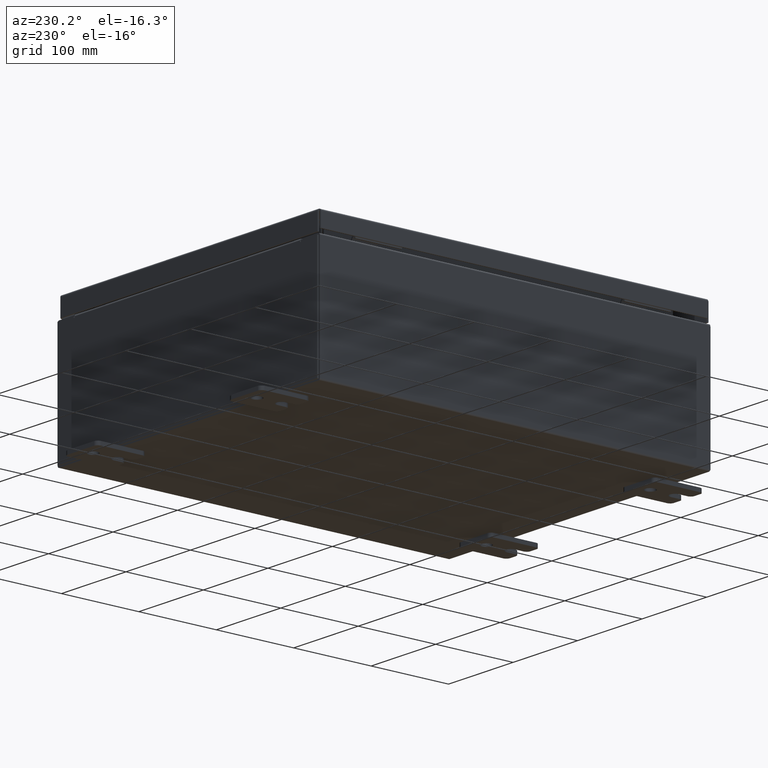
[diagram: clean part render]
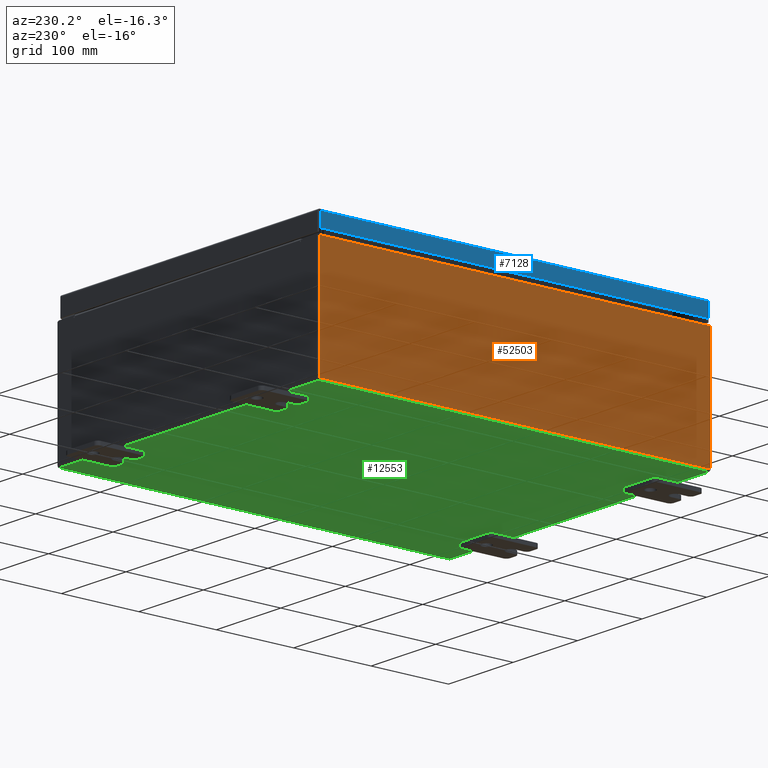
[diagram: same view with three faces highlighted in distinct colors, each labeled with its STEP entity id]
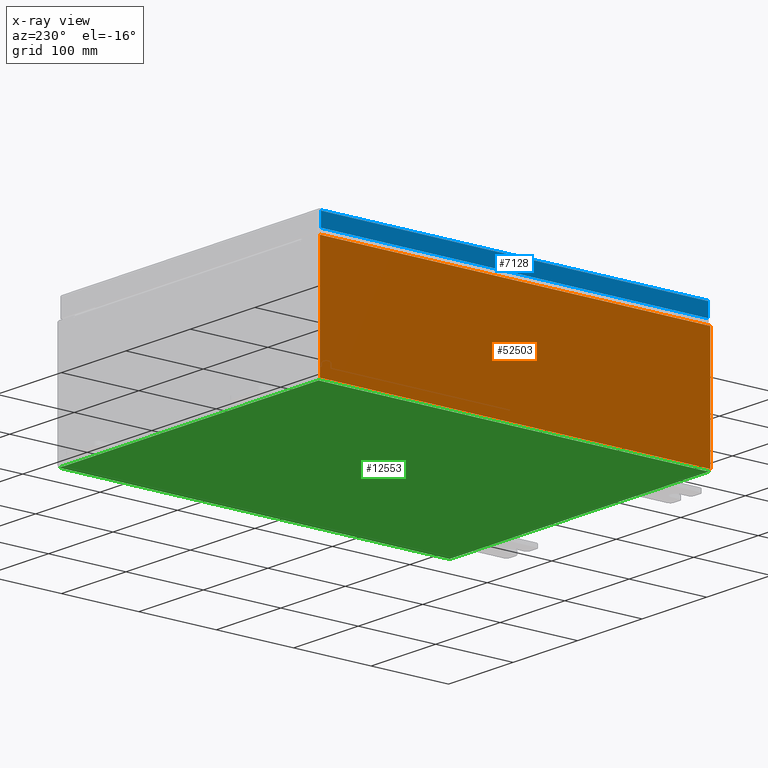
[diagram: x-ray of the same camera — body ghosted, the three highlighted faces saturated]
A machine part, auxiliary view with three faces highlighted in distinct colors.
The next image is the same camera in x-ray (body ghosted, the three faces saturated) — at least one of them is partly hidden behind the body in this view.
Their STEP definitions:

[orange] entity #52503 — the highlighted planar face has unit normal (1, 0, 0).
#805 = EDGE_LOOP ( 'NONE', ( #62883, #42499, #8192, #32660 ) ) ;
#4986 = VERTEX_POINT ( 'NONE', #24526 ) ;
#7159 = VERTEX_POINT ( 'NONE', #38336 ) ;
#8192 = ORIENTED_EDGE ( 'NONE', *, *, #40244, .F. ) ;
#9453 = PLANE ( 'NONE',  #29544 ) ;
#11032 = VECTOR ( 'NONE', #58499, 39.37007874015748100 ) ;
#12487 = DIRECTION ( 'NONE',  ( 3.503965158194252100E-015, 0.0000000000000000000, -1.000000000000000000 ) ) ;
#13048 = LINE ( 'NONE', #35931, #61678 ) ;
#14345 = DIRECTION ( 'NONE',  ( 3.503965158194251300E-015, 0.0000000000000000000, -1.000000000000000000 ) ) ;
#15927 = VECTOR ( 'NONE', #12487, 39.37007874015748100 ) ;
#18326 = CARTESIAN_POINT ( 'NONE',  ( -8.000000000000017800, -9.925299999999996500, 5.837599999999999200 ) ) ;
#24483 = LINE ( 'NONE', #27122, #51886 ) ;
#24526 = CARTESIAN_POINT ( 'NONE',  ( -7.999999999999997300, -9.925300000000000000, 0.01299999999999984700 ) ) ;
#25885 = LINE ( 'NONE', #41724, #15927 ) ;
#27122 = CARTESIAN_POINT ( 'NONE',  ( -7.999999999999997300, -9.925300000000001800, -2.829253492156558900E-014 ) ) ;
#29105 = EDGE_CURVE ( 'NONE', #29381, #39162, #13048, .T. ) ;
#29156 = FACE_OUTER_BOUND ( 'NONE', #805, .T. ) ;
#29381 = VERTEX_POINT ( 'NONE', #18326 ) ;
#29461 = CARTESIAN_POINT ( 'NONE',  ( -7.999999999999997300, 9.925299999999998200, 0.01299999999999984700 ) ) ;
#29544 = AXIS2_PLACEMENT_3D ( 'NONE', #57914, #43599, #14345 ) ;
#32660 = ORIENTED_EDGE ( 'NONE', *, *, #53552, .T. ) ;
#32777 = EDGE_CURVE ( 'NONE', #39162, #7159, #25885, .T. ) ;
#35931 = CARTESIAN_POINT ( 'NONE',  ( -8.000000000000017800, -9.925299999999998200, 5.837599999999999200 ) ) ;
#37043 = LINE ( 'NONE', #29461, #11032 ) ;
#38336 = CARTESIAN_POINT ( 'NONE',  ( -7.999999999999997300, 9.925299999999998200, 0.01299999999999984500 ) ) ;
#39162 = VERTEX_POINT ( 'NONE', #47304 ) ;
#40244 = EDGE_CURVE ( 'NONE', #4986, #7159, #37043, .T. ) ;
#41724 = CARTESIAN_POINT ( 'NONE',  ( -7.999999999999997300, 9.925299999999998200, -2.829253492156558900E-014 ) ) ;
#42499 = ORIENTED_EDGE ( 'NONE', *, *, #32777, .T. ) ;
#43599 = DIRECTION ( 'NONE',  ( 1.000000000000000000, 0.0000000000000000000, 3.503965158194251300E-015 ) ) ;
#47304 = CARTESIAN_POINT ( 'NONE',  ( -8.000000000000017800, 9.925299999999998200, 5.837599999999999200 ) ) ;
#51160 = DIRECTION ( 'NONE',  ( -3.503965158194252100E-015, 0.0000000000000000000, 1.000000000000000000 ) ) ;
#51886 = VECTOR ( 'NONE', #51160, 39.37007874015748100 ) ;
#52503 = ADVANCED_FACE ( 'NONE', ( #29156 ), #9453, .F. ) ;
#53552 = EDGE_CURVE ( 'NONE', #4986, #29381, #24483, .T. ) ;
#55374 = DIRECTION ( 'NONE',  ( 0.0000000000000000000, 1.000000000000000000, 0.0000000000000000000 ) ) ;
#57914 = CARTESIAN_POINT ( 'NONE',  ( -7.999999999999997300, 0.0000000000000000000, -2.829253492156558900E-014 ) ) ;
#58499 = DIRECTION ( 'NONE',  ( -0.0000000000000000000, 1.000000000000000000, -0.0000000000000000000 ) ) ;
#61678 = VECTOR ( 'NONE', #55374, 39.37007874015748100 ) ;
#62883 = ORIENTED_EDGE ( 'NONE', *, *, #29105, .T. ) ;

[blue] entity #7128 — the highlighted planar face has unit normal (1, 0, -0).
#2509 = VECTOR ( 'NONE', #21958, 39.37007874015748100 ) ;
#3180 = LINE ( 'NONE', #33013, #40673 ) ;
#4803 = VECTOR ( 'NONE', #27373, 39.37007874015748100 ) ;
#5241 = LINE ( 'NONE', #61507, #16671 ) ;
#7128 = ADVANCED_FACE ( 'NONE', ( #54364 ), #42523, .F. ) ;
#8770 = VERTEX_POINT ( 'NONE', #12482 ) ;
#12482 = CARTESIAN_POINT ( 'NONE',  ( -7.937500000000000000, -9.848657864376273000, -0.08770000000000007000 ) ) ;
#12989 = DIRECTION ( 'NONE',  ( 1.000000000000000000, 3.753401345910882400E-031, -3.034122441942816500E-015 ) ) ;
#15509 = LINE ( 'NONE', #60789, #2509 ) ;
#16671 = VECTOR ( 'NONE', #47006, 39.37007874015748100 ) ;
#19883 = ORIENTED_EDGE ( 'NONE', *, *, #55910, .F. ) ;
#21345 = VERTEX_POINT ( 'NONE', #21404 ) ;
#21404 = CARTESIAN_POINT ( 'NONE',  ( -7.937500000000002700, -9.848657864376265900, -0.7949999999999996000 ) ) ;
#21958 = DIRECTION ( 'NONE',  ( -3.034122441942816500E-015, 6.982962677686267500E-015, -1.000000000000000000 ) ) ;
#25727 = EDGE_CURVE ( 'NONE', #8770, #21345, #15509, .T. ) ;
#27373 = DIRECTION ( 'NONE',  ( 4.379057701015054300E-047, 1.000000000000000000, 1.237063242414006300E-016 ) ) ;
#30289 = CARTESIAN_POINT ( 'NONE',  ( -7.937500000000002700, 9.848657864376271200, -0.7949999999999972600 ) ) ;
#31025 = CARTESIAN_POINT ( 'NONE',  ( -7.937500000000000000, -2.979262318316762700E-030, 2.434416053893268900E-014 ) ) ;
#33013 = CARTESIAN_POINT ( 'NONE',  ( -7.937500000000000000, 9.848657864376265900, 9.311697083117350000E-014 ) ) ;
#34638 = VERTEX_POINT ( 'NONE', #37352 ) ;
#37352 = CARTESIAN_POINT ( 'NONE',  ( -7.937500000000000000, 9.848657864376269400, -0.08770000000000004200 ) ) ;
#37911 = DIRECTION ( 'NONE',  ( -3.034122441942816500E-015, 6.982962677686267500E-015, -1.000000000000000000 ) ) ;
#40673 = VECTOR ( 'NONE', #37911, 39.37007874015748100 ) ;
#40999 = ORIENTED_EDGE ( 'NONE', *, *, #25727, .F. ) ;
#42259 = LINE ( 'NONE', #56466, #4803 ) ;
#42523 = PLANE ( 'NONE',  #55913 ) ;
#47006 = DIRECTION ( 'NONE',  ( 3.753401345910882400E-031, -1.000000000000000000, -1.106432229392147200E-045 ) ) ;
#47963 = VERTEX_POINT ( 'NONE', #30289 ) ;
#49331 = EDGE_LOOP ( 'NONE', ( #19883, #62252, #49597, #40999 ) ) ;
#49597 = ORIENTED_EDGE ( 'NONE', *, *, #50537, .F. ) ;
#50537 = EDGE_CURVE ( 'NONE', #21345, #47963, #42259, .T. ) ;
#51575 = EDGE_CURVE ( 'NONE', #34638, #47963, #3180, .T. ) ;
#54364 = FACE_OUTER_BOUND ( 'NONE', #49331, .T. ) ;
#55326 = DIRECTION ( 'NONE',  ( -3.034122441942816500E-015, 0.0000000000000000000, -1.000000000000000000 ) ) ;
#55910 = EDGE_CURVE ( 'NONE', #34638, #8770, #5241, .T. ) ;
#55913 = AXIS2_PLACEMENT_3D ( 'NONE', #31025, #12989, #55326 ) ;
#56466 = CARTESIAN_POINT ( 'NONE',  ( -7.937500000000002700, -9.937500000000001800, -0.7949999999999997100 ) ) ;
#60789 = CARTESIAN_POINT ( 'NONE',  ( -7.937500000000000000, -9.848657864376271200, -0.07469999999999976700 ) ) ;
#61507 = CARTESIAN_POINT ( 'NONE',  ( -7.937500000000000000, -9.937500000000001800, -0.08770000000000004200 ) ) ;
#62252 = ORIENTED_EDGE ( 'NONE', *, *, #51575, .T. ) ;

[green] entity #12553 — the highlighted planar face has unit normal (0, 0, -1).
#132 = AXIS2_PLACEMENT_3D ( 'NONE', #15067, #13780, #13698 ) ;
#4273 = LINE ( 'NONE', #32307, #54529 ) ;
#4603 = LINE ( 'NONE', #35881, #17562 ) ;
#9455 = DIRECTION ( 'NONE',  ( -1.000000000000000000, -0.0000000000000000000, -0.0000000000000000000 ) ) ;
#11364 = EDGE_CURVE ( 'NONE', #48459, #23741, #4603, .T. ) ;
#12553 = ADVANCED_FACE ( 'NONE', ( #56338 ), #13834, .T. ) ;
#12846 = ORIENTED_EDGE ( 'NONE', *, *, #23605, .T. ) ;
#13698 = DIRECTION ( 'NONE',  ( -1.000000000000000000, 0.0000000000000000000, -0.0000000000000000000 ) ) ;
#13780 = DIRECTION ( 'NONE',  ( 0.0000000000000000000, 0.0000000000000000000, -1.000000000000000000 ) ) ;
#13834 = PLANE ( 'NONE',  #132 ) ;
#14212 = CARTESIAN_POINT ( 'NONE',  ( -7.912299999999997400, 9.925299999999998200, -0.07470000000000000300 ) ) ;
#15067 = CARTESIAN_POINT ( 'NONE',  ( 0.0000000000000000000, 0.0000000000000000000, -0.07470000000000000300 ) ) ;
#15415 = DIRECTION ( 'NONE',  ( -0.0000000000000000000, 1.000000000000000000, -0.0000000000000000000 ) ) ;
#17562 = VECTOR ( 'NONE', #56047, 39.37007874015748100 ) ;
#19749 = ORIENTED_EDGE ( 'NONE', *, *, #51386, .T. ) ;
#20783 = VECTOR ( 'NONE', #36108, 39.37007874015748100 ) ;
#21772 = LINE ( 'NONE', #29776, #31735 ) ;
#22330 = LINE ( 'NONE', #31599, #20783 ) ;
#23605 = EDGE_CURVE ( 'NONE', #48459, #46864, #21772, .T. ) ;
#23741 = VERTEX_POINT ( 'NONE', #40650 ) ;
#26610 = EDGE_LOOP ( 'NONE', ( #35053, #12846, #47208, #19749 ) ) ;
#27416 = CARTESIAN_POINT ( 'NONE',  ( 7.912300000000001900, 9.925299999999996500, -0.07469999999999994700 ) ) ;
#29776 = CARTESIAN_POINT ( 'NONE',  ( -7.912299999999997400, -9.925300000000001800, -0.07469999999999994700 ) ) ;
#31599 = CARTESIAN_POINT ( 'NONE',  ( 7.912300000000001900, 9.925299999999998200, -0.07469999999999994700 ) ) ;
#31735 = VECTOR ( 'NONE', #15415, 39.37007874015748100 ) ;
#32307 = CARTESIAN_POINT ( 'NONE',  ( -7.999999999999997300, 9.925299999999998200, -0.07470000000000000300 ) ) ;
#35053 = ORIENTED_EDGE ( 'NONE', *, *, #11364, .F. ) ;
#35881 = CARTESIAN_POINT ( 'NONE',  ( -7.999999999999997300, -9.925300000000001800, -0.07470000000000000300 ) ) ;
#36108 = DIRECTION ( 'NONE',  ( -0.0000000000000000000, -1.000000000000000000, -0.0000000000000000000 ) ) ;
#36296 = VERTEX_POINT ( 'NONE', #27416 ) ;
#38036 = EDGE_CURVE ( 'NONE', #36296, #46864, #4273, .T. ) ;
#40650 = CARTESIAN_POINT ( 'NONE',  ( 7.912300000000001900, -9.925300000000001800, -0.07470000000000000300 ) ) ;
#46864 = VERTEX_POINT ( 'NONE', #14212 ) ;
#47208 = ORIENTED_EDGE ( 'NONE', *, *, #38036, .F. ) ;
#48459 = VERTEX_POINT ( 'NONE', #57595 ) ;
#51386 = EDGE_CURVE ( 'NONE', #36296, #23741, #22330, .T. ) ;
#54529 = VECTOR ( 'NONE', #9455, 39.37007874015748100 ) ;
#56047 = DIRECTION ( 'NONE',  ( 1.000000000000000000, 0.0000000000000000000, 0.0000000000000000000 ) ) ;
#56338 = FACE_OUTER_BOUND ( 'NONE', #26610, .T. ) ;
#57595 = CARTESIAN_POINT ( 'NONE',  ( -7.912299999999997400, -9.925300000000000000, -0.07469999999999994700 ) ) ;